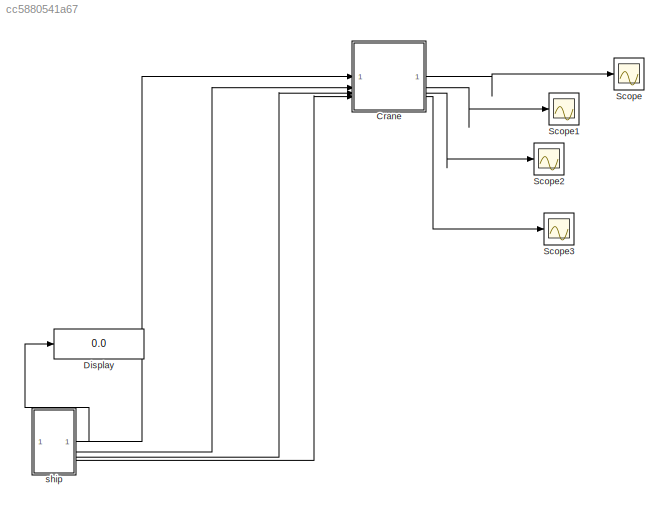
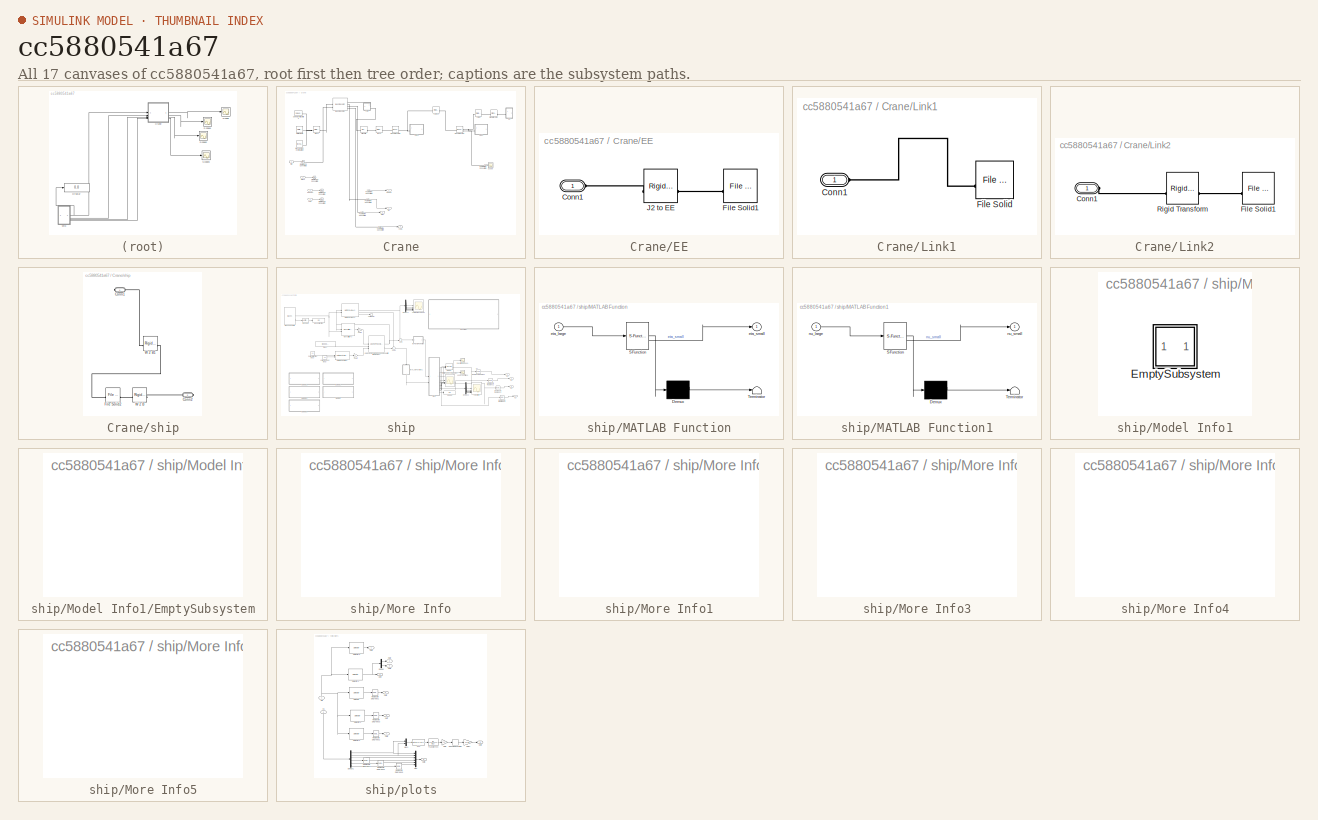
[diagram: thumbnail index - all 17 canvases of the model, root first then tree order]
MODEL slx_cc5880541a67
KIND model
CONFIG AbsTol = auto
CONFIG EnableMultiTasking = off
CONFIG FixedStep = auto
CONFIG MaxStep = auto
CONFIG MinStep = auto
CONFIG RelTol = 1e-3
CONFIG SampleTimeConstraint = Unconstrained
CONFIG SolverName = ode45
CONFIG StartTime = 0.0
CONFIG StopTime = 20
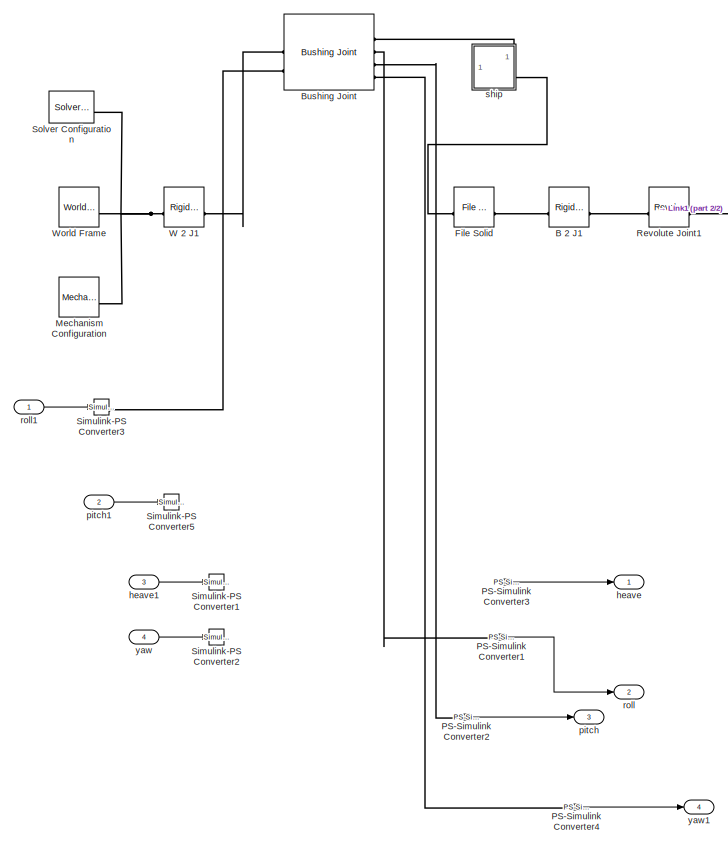
[diagram: Crane - part 1/2, left side, full height]
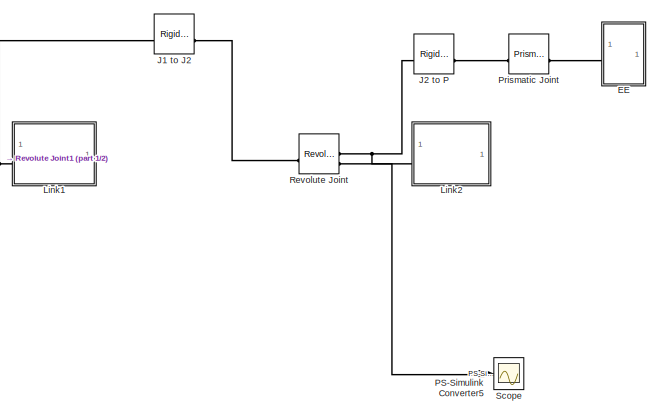
[diagram: Crane - part 2/2, top right region]
BLOCK [SubSystem] Crane
BLOCK [Reference] Crane/B 2 J1  REF=sm_lib/Frames and
Transforms/Rigid
Transform
  SourceBlock = sm_lib/Frames and\nTransforms/Rigid\nTransform
  SourceType = Rigid\nTransform
BLOCK [Reference] Crane/Bushing Joint  REF=sm_lib/Joints/Bushing Joint
  SourceBlock = sm_lib/Joints/Bushing Joint
  SourceType = Bushing Joint
BLOCK [SubSystem] Crane/EE
BLOCK [PMIOPort] Crane/EE/Conn1
  Side = Left
BLOCK [Reference] Crane/EE/File Solid1  REF=sm_lib/Body Elements/File Solid
  SourceBlock = sm_lib/Body Elements/File Solid
  SourceType = File Solid
BLOCK [Reference] Crane/EE/J2 to EE  REF=sm_lib/Frames and
Transforms/Rigid
Transform
  SourceBlock = sm_lib/Frames and\nTransforms/Rigid\nTransform
  SourceType = Rigid\nTransform
BLOCK [Reference] Crane/File Solid  REF=sm_lib/Body Elements/File Solid
  NameLocation = top
  SourceBlock = sm_lib/Body Elements/File Solid
  SourceType = File Solid
BLOCK [Reference] Crane/J1 to J2  REF=sm_lib/Frames and
Transforms/Rigid
Transform
  SourceBlock = sm_lib/Frames and\nTransforms/Rigid\nTransform
  SourceType = Rigid\nTransform
BLOCK [Reference] Crane/J2 to P  REF=sm_lib/Frames and
Transforms/Rigid
Transform
  SourceBlock = sm_lib/Frames and\nTransforms/Rigid\nTransform
  SourceType = Rigid\nTransform
BLOCK [SubSystem] Crane/Link1
BLOCK [PMIOPort] Crane/Link1/Conn1
  Side = Left
BLOCK [Reference] Crane/Link1/File Solid  REF=sm_lib/Body Elements/File Solid
  SourceBlock = sm_lib/Body Elements/File Solid
  SourceType = File Solid
BLOCK [SubSystem] Crane/Link2
BLOCK [PMIOPort] Crane/Link2/Conn1
  Side = Left
BLOCK [Reference] Crane/Link2/File Solid1  REF=sm_lib/Body Elements/File Solid
  SourceBlock = sm_lib/Body Elements/File Solid
  SourceType = File Solid
BLOCK [Reference] Crane/Link2/Rigid Transform  REF=sm_lib/Frames and
Transforms/Rigid
Transform
  SourceBlock = sm_lib/Frames and\nTransforms/Rigid\nTransform
  SourceType = Rigid\nTransform
BLOCK [Reference] Crane/Mechanism Configuration  REF=sm_lib/Utilities/Mechanism
Configuration
  SourceBlock = sm_lib/Utilities/Mechanism\nConfiguration
  SourceType = Mechanism\nConfiguration
BLOCK [Reference] Crane/PS-Simulink Converter1  REF=nesl_utility/PS-Simulink
Converter
  SourceBlock = nesl_utility/PS-Simulink\nConverter
  SourceType = PS-Simulink\nConverter
BLOCK [Reference] Crane/PS-Simulink Converter2  REF=nesl_utility/PS-Simulink
Converter
  SourceBlock = nesl_utility/PS-Simulink\nConverter
  SourceType = PS-Simulink\nConverter
BLOCK [Reference] Crane/PS-Simulink Converter3  REF=nesl_utility/PS-Simulink
Converter
  SourceBlock = nesl_utility/PS-Simulink\nConverter
  SourceType = PS-Simulink\nConverter
BLOCK [Reference] Crane/PS-Simulink Converter4  REF=nesl_utility/PS-Simulink
Converter
  SourceBlock = nesl_utility/PS-Simulink\nConverter
  SourceType = PS-Simulink\nConverter
BLOCK [Reference] Crane/PS-Simulink Converter5  REF=nesl_utility/PS-Simulink
Converter
  SourceBlock = nesl_utility/PS-Simulink\nConverter
  SourceType = PS-Simulink\nConverter
BLOCK [Reference] Crane/Prismatic Joint  REF=sm_lib/Joints/Prismatic
Joint
  SourceBlock = sm_lib/Joints/Prismatic\nJoint
  SourceType = Prismatic\nJoint
BLOCK [Reference] Crane/Revolute Joint  REF=sm_lib/Joints/Revolute Joint
  SourceBlock = sm_lib/Joints/Revolute Joint
  SourceType = Revolute Joint
BLOCK [Reference] Crane/Revolute Joint1  REF=sm_lib/Joints/Revolute Joint
  SourceBlock = sm_lib/Joints/Revolute Joint
  SourceType = Revolute Joint
BLOCK [Scope] Crane/Scope
  Floating = off
  NumInputPorts = 1
  ScopeSpecificationString = Simulink.scopes.TimeScopeBlockCfg('CurrentConfiguration', extmgr.ConfigurationSet(extmgr.Configuration('Core','General UI',true),extmgr.Configuration('Core','Source UI',true),extmgr.Configuration('Sources','WiredSimulink',true,'DataLoggingVariableName','ScopeData5'),extmgr.Configuration('Visuals','Time Domain',true,'SerializedDisplays',{struct('MinYLimReal','-0.99715','MaxYLimReal','0.99166','YLab...<+1530ch>
BLOCK [Reference] Crane/Simulink-PS Converter1  REF=nesl_utility/Simulink-PS
Converter
  SourceBlock = nesl_utility/Simulink-PS\nConverter
  SourceType = Simulink-PS\nConverter
BLOCK [Reference] Crane/Simulink-PS Converter2  REF=nesl_utility/Simulink-PS
Converter
  SourceBlock = nesl_utility/Simulink-PS\nConverter
  SourceType = Simulink-PS\nConverter
BLOCK [Reference] Crane/Simulink-PS Converter3  REF=nesl_utility/Simulink-PS
Converter
  SourceBlock = nesl_utility/Simulink-PS\nConverter
  SourceType = Simulink-PS\nConverter
BLOCK [Reference] Crane/Simulink-PS Converter5  REF=nesl_utility/Simulink-PS
Converter
  SourceBlock = nesl_utility/Simulink-PS\nConverter
  SourceType = Simulink-PS\nConverter
BLOCK [Reference] Crane/Solver Configuration  REF=nesl_utility/Solver
Configuration
  SourceBlock = nesl_utility/Solver\nConfiguration
  SourceType = Solver\nConfiguration
BLOCK [Reference] Crane/W 2 J1  REF=sm_lib/Frames and
Transforms/Rigid
Transform
  SourceBlock = sm_lib/Frames and\nTransforms/Rigid\nTransform
  SourceType = Rigid\nTransform
BLOCK [Reference] Crane/World Frame  REF=sm_lib/Frames and
Transforms/World Frame
  SourceBlock = sm_lib/Frames and\nTransforms/World Frame
  SourceType = World Frame
BLOCK [Outport] Crane/heave
BLOCK [Inport] Crane/heave1
  Port = 3
BLOCK [Outport] Crane/pitch
  Port = 3
BLOCK [Inport] Crane/pitch1
  Port = 2
BLOCK [Outport] Crane/roll
  Port = 2
BLOCK [Inport] Crane/roll1
BLOCK [SubSystem] Crane/ship
BLOCK [PMIOPort] Crane/ship/Conn1
  Side = Right
BLOCK [PMIOPort] Crane/ship/Conn2
  Port = 2
  Side = Right
BLOCK [Reference] Crane/ship/File Solid2  REF=sm_lib/Body Elements/File Solid
  SourceBlock = sm_lib/Body Elements/File Solid
  SourceType = File Solid
BLOCK [Reference] Crane/ship/W 2 B  REF=sm_lib/Frames and
Transforms/Rigid
Transform
  SourceBlock = sm_lib/Frames and\nTransforms/Rigid\nTransform
  SourceType = Rigid\nTransform
BLOCK [Reference] Crane/ship/W 2 B1  REF=sm_lib/Frames and
Transforms/Rigid
Transform
  SourceBlock = sm_lib/Frames and\nTransforms/Rigid\nTransform
  SourceType = Rigid\nTransform
BLOCK [Inport] Crane/yaw
  Port = 4
BLOCK [Outport] Crane/yaw1
  Port = 4
BLOCK [Display] Display
  Decimation = 1
BLOCK [Scope] Scope
  Floating = off
  NumInputPorts = 1
  ScopeSpecificationString = Simulink.scopes.TimeScopeBlockCfg('CurrentConfiguration', extmgr.ConfigurationSet(extmgr.Configuration('Core','General UI',true),extmgr.Configuration('Core','Source UI',true),extmgr.Configuration('Sources','WiredSimulink',true,'DataLoggingVariableName','ScopeData1'),extmgr.Configuration('Visuals','Time Domain',true,'SerializedDisplays',{struct('MinYLimReal','-0.00067','MaxYLimReal','0.00081','YLab...<+1551ch>
BLOCK [Scope] Scope1
  Floating = off
  NumInputPorts = 1
  ScopeSpecificationString = Simulink.scopes.TimeScopeBlockCfg('CurrentConfiguration', extmgr.ConfigurationSet(extmgr.Configuration('Core','General UI',true),extmgr.Configuration('Core','Source UI',true),extmgr.Configuration('Sources','WiredSimulink',true,'DataLoggingVariableName','ScopeData2'),extmgr.Configuration('Visuals','Time Domain',true,'SerializedDisplays',{struct('MinYLimReal','-0.02706','MaxYLimReal','0.02161','YLab...<+1551ch>
BLOCK [Scope] Scope2
  Floating = off
  NumInputPorts = 1
  ScopeSpecificationString = Simulink.scopes.TimeScopeBlockCfg('CurrentConfiguration', extmgr.ConfigurationSet(extmgr.Configuration('Core','General UI',true),extmgr.Configuration('Core','Source UI',true),extmgr.Configuration('Sources','WiredSimulink',true,'DataLoggingVariableName','ScopeData3'),extmgr.Configuration('Visuals','Time Domain',true,'SerializedDisplays',{struct('MinYLimReal','-2.21183','MaxYLimReal','0.91284','YLab...<+1564ch>
BLOCK [Scope] Scope3
  Floating = off
  NumInputPorts = 1
  ScopeSpecificationString = Simulink.scopes.TimeScopeBlockCfg('CurrentConfiguration', extmgr.ConfigurationSet(extmgr.Configuration('Core','General UI',true),extmgr.Configuration('Core','Source UI',true),extmgr.Configuration('Sources','WiredSimulink',true,'DataLoggingVariableName','ScopeData4'),extmgr.Configuration('Visuals','Time Domain',true,'SerializedDisplays',{struct('MinYLimReal','-0.0833','MaxYLimReal','0.08144','YLabe...<+1547ch>
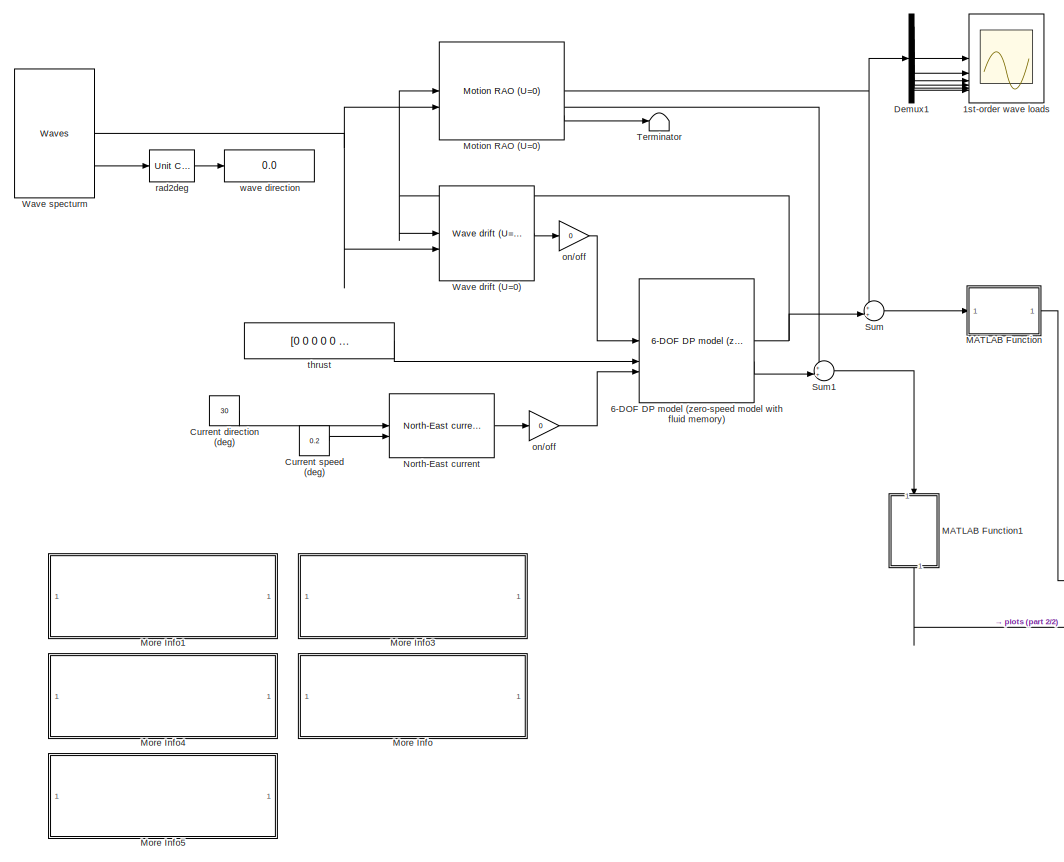
[diagram: ship - part 1/2, left side, full height]
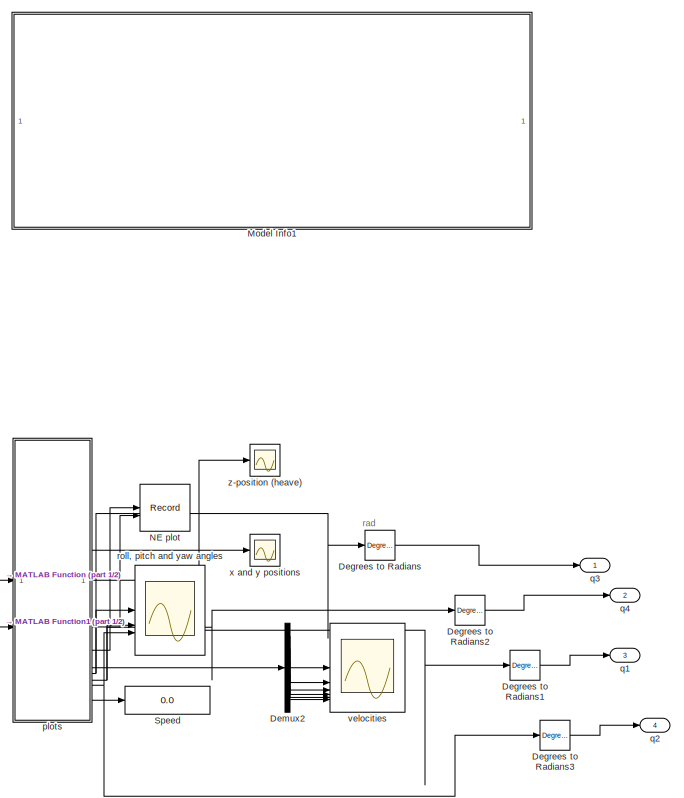
[diagram: ship - part 2/2, right side, full height]
BLOCK [SubSystem] ship
BLOCK [Scope] ship/1st-order wave loads 
  Floating = off
  NumInputPorts = 6
  ScopeSpecificationString = Simulink.scopes.TimeScopeBlockCfg('CurrentConfiguration', extmgr.ConfigurationSet(extmgr.Configuration('Core','General UI',true),extmgr.Configuration('Core','Source UI',true),extmgr.Configuration('Sources','WiredSimulink',true,'DataLoggingSaveFormat','StructureWithTime','DataLoggingLimitDataPoints',true,'DataLoggingDecimation','1','DataLoggingDecimateData',true,'DataLoggingVariableName','ScopeData...<+5699ch>
BLOCK [Reference] ship/6-DOF DP model (zero-speed model with fluid memory)   REF=mssSimulink/Hydrodynamics/6-DOF DP model
 (zero-speed model with fluid memory)
  SourceBlock = mssSimulink/Hydrodynamics/6-DOF DP model\n (zero-speed model with fluid memory)
  SourceType = 6 DOF zero speed model
BLOCK [Constant] ship/Current direction (deg)
  Value = 30
BLOCK [Constant] ship/Current speed (deg)
  Value = 0.2
BLOCK [Reference] ship/Degrees to Radians  REF=simulink_extras/Transformations/Degrees to
Radians
  SourceBlock = simulink_extras/Transformations/Degrees to\nRadians
  SourceType = DegreesToRadians
BLOCK [Reference] ship/Degrees to Radians1  REF=simulink_extras/Transformations/Degrees to
Radians
  SourceBlock = simulink_extras/Transformations/Degrees to\nRadians
  SourceType = DegreesToRadians
BLOCK [Reference] ship/Degrees to Radians2  REF=simulink_extras/Transformations/Degrees to
Radians
  SourceBlock = simulink_extras/Transformations/Degrees to\nRadians
  SourceType = DegreesToRadians
BLOCK [Reference] ship/Degrees to Radians3  REF=simulink_extras/Transformations/Degrees to
Radians
  SourceBlock = simulink_extras/Transformations/Degrees to\nRadians
  SourceType = DegreesToRadians
BLOCK [Demux] ship/Demux1
  DisplayOption = none
  Outputs = 6
BLOCK [Demux] ship/Demux2
  DisplayOption = none
  Outputs = 6
BLOCK [SubSystem] ship/MATLAB Function
  ErrorFcn = Stateflow.Translate.translate
  PermitHierarchicalResolution = ExplicitOnly
  SFBlockType = MATLAB Function
  TreatAsAtomicUnit = on
BLOCK [Demux] ship/MATLAB Function/ Demux 
  Outputs = 1
BLOCK [S-Function] ship/MATLAB Function/ SFunction 
  EnableBusSupport = on
  FunctionName = sf_sfun
  PortCounts = [1 2]
  SFcnIsStateOwnerBlock = off
  SFunctionDeploymentMode = off
  Tag = Stateflow S-Function 2
BLOCK [Terminator] ship/MATLAB Function/ Terminator 
BLOCK [Inport] ship/MATLAB Function/eta_large
BLOCK [Outport] ship/MATLAB Function/eta_small
BLOCK [SubSystem] ship/MATLAB Function1
  ErrorFcn = Stateflow.Translate.translate
  NameLocation = left
  PermitHierarchicalResolution = ExplicitOnly
  SFBlockType = MATLAB Function
  TreatAsAtomicUnit = on
BLOCK [Demux] ship/MATLAB Function1/ Demux 
  Outputs = 1
BLOCK [S-Function] ship/MATLAB Function1/ SFunction 
  EnableBusSupport = on
  FunctionName = sf_sfun
  PortCounts = [1 2]
  SFcnIsStateOwnerBlock = off
  SFunctionDeploymentMode = off
  Tag = Stateflow S-Function 1
BLOCK [Terminator] ship/MATLAB Function1/ Terminator 
BLOCK [Inport] ship/MATLAB Function1/nu_large
BLOCK [Outport] ship/MATLAB Function1/nu_small
BLOCK [SubSystem] ship/Model Info1
  CopyFcn = slcm CopyBlock;
  DeleteFcn = slcm Cancel;
  InitFcn = slcm('UpdateAllCMBlocksInThisModelInit')
  LoadFcn = slcm LoadBlock;
  NameChangeFcn = slcm Rename;
  OpenFcn = slcm
  PostSaveFcn = slcm('UpdateAllCMBlocksInThisModel')
BLOCK [SubSystem] ship/Model Info1/EmptySubsystem
BLOCK [SubSystem] ship/More Info
  OpenFcn = load('supply'),load('supplyABC');disp('MSS supply vessel data set (L = 82.80 m) loaded')
BLOCK [SubSystem] ship/More Info1
  OpenFcn = load('tanker'),load('tankerABC');disp('MSS tanker data set (L = 246.0 m) loaded')
BLOCK [SubSystem] ship/More Info3
  OpenFcn = load('s175'),load('s175ABC');disp('MSS S175 data set (L = 175.0 m) loaded')
BLOCK [SubSystem] ship/More Info4
  OpenFcn = load('fpso'),load('fpsoABC');disp('MSS FPSO data set (L = 200.0 m) loaded')
BLOCK [SubSystem] ship/More Info5
  OpenFcn = load('semisub'),load('semisubABC');disp('MSS semi-sub data set (L = 115.0 m) loaded')
BLOCK [Reference] ship/Motion RAO (U=0)   REF=mssSimulink/Hydrodynamics/Motion RAO (U=0)
  SourceBlock = mssSimulink/Hydrodynamics/Motion RAO (U=0)
  SourceType = Motion RAO
BLOCK [Record] ship/NE plot
  CompatibilityTag = XY
  FileSettingsInternal = {"entries":[{"content":{"excelSettings":{"content":{},"type":"Streamout.ExcelSettings"}},"type":"Streamout.FileSettingStorage","uuid":""}],"packageUris":["http:\/\/schema.mathworks.com\/mf0\/streamout_blocks\/R2020a"],"version":"1.0"}
  Layout = [1 1]
  SignalsInternal = {"entries":[{"content":{"signals":[{"content":{"blockPath":[],"dimensions":[1,1],"domain":"","lineColor":"#a2142f","plots":[ 1 ],"port":1,"sid":[""],"signalID":1,"signalName":"plots:3"},"type":"RecordBlkView.Signal","uuid":""},{"content":{"blockPath":[],"dimensions":[1,1],"domain":"","lineColor":"#139fff","plots":[ 1 ],"port":2,"sid":[""],"signalID":2,"signalName":"plots:2"},"type":"RecordBlkView....<+164ch>
  VisualizationBindings = {"xyplotplugin":{"info":[{"series":[{"bindingParametersList":[{"parameter":"X-Axis","signalID":1,"signalName":"plots:3"},{"parameter":"Y-Axis","signalID":2,"signalName":"plots:2"}],"seriesID":0}],"subplotID":1}]}}
  st = -1
BLOCK [Reference] ship/North-East current   REF=mssSimulink/Environment/Current/North-East current
  SourceBlock = mssSimulink/Environment/Current/North-East current
  SourceType = SubSystem
BLOCK [Display] ship/Speed
  Decimation = 1
BLOCK [Sum] ship/Sum
  Inputs = ++|
BLOCK [Sum] ship/Sum1
  Inputs = ++|
BLOCK [Terminator] ship/Terminator
BLOCK [Reference] ship/Wave drift (U=0)   REF=mssSimulink/Hydrodynamics/Wave drift (U=0)
  SourceBlock = mssSimulink/Hydrodynamics/Wave drift (U=0)
  SourceType = SubSystem
BLOCK [Reference] ship/Wave specturm  REF=mssSimulink/Environment/Waves/Waves
  SourceBlock = mssSimulink/Environment/Waves/Waves
  SourceType = Waves
BLOCK [Gain] ship/on//off
  Gain = 0
BLOCK [Gain] ship/on//off 
  Gain = 0
BLOCK [SubSystem] ship/plots
BLOCK [Demux] ship/plots/Demux
  DisplayOption = none
  Outputs = 2
BLOCK [Demux] ship/plots/Demux1
  DisplayOption = none
  Outputs = 6
BLOCK [Fcn] ship/plots/Fcn
  Expr = sqrt(u(1)*u(1)+u(2)*u(2))
BLOCK [Gain] ship/plots/Gain
  Gain = 10
BLOCK [Gain] ship/plots/Gain1
  Gain = 1/10
BLOCK [Mux] ship/plots/Mux
  DisplayOption = bar
  Inputs = 6
BLOCK [Mux] ship/plots/Mux1
  DisplayOption = bar
  Inputs = 2
BLOCK [Outport] ship/plots/Out1
BLOCK [Outport] ship/plots/Out2
  Port = 2
BLOCK [Outport] ship/plots/Out3
  Port = 3
BLOCK [Outport] ship/plots/Out4
  Port = 4
BLOCK [Outport] ship/plots/Out5
  Port = 5
BLOCK [Outport] ship/plots/Out6
  Port = 7
BLOCK [Outport] ship/plots/Out7
  Port = 6
BLOCK [Outport] ship/plots/Out8
  Port = 8
BLOCK [Outport] ship/plots/Out9
  Port = 9
BLOCK [Reference] ship/plots/Radians to Degrees1  REF=simulink_extras/Transformations/Radians
to Degrees
  SourceBlock = simulink_extras/Transformations/Radians\nto Degrees
  SourceType = RadiansToDegrees
BLOCK [Reference] ship/plots/Radians to Degrees2  REF=simulink_extras/Transformations/Radians
to Degrees
  SourceBlock = simulink_extras/Transformations/Radians\nto Degrees
  SourceType = RadiansToDegrees
BLOCK [Reference] ship/plots/Radians to Degrees3  REF=simulink_extras/Transformations/Radians
to Degrees
  SourceBlock = simulink_extras/Transformations/Radians\nto Degrees
  SourceType = RadiansToDegrees
BLOCK [Reference] ship/plots/Radians to Degrees4  REF=simulink_extras/Transformations/Radians
to Degrees
  SourceBlock = simulink_extras/Transformations/Radians\nto Degrees
  SourceType = RadiansToDegrees
BLOCK [Reference] ship/plots/Radians to Degrees5  REF=simulink_extras/Transformations/Radians
to Degrees
  SourceBlock = simulink_extras/Transformations/Radians\nto Degrees
  SourceType = RadiansToDegrees
BLOCK [Reference] ship/plots/Radians to Degrees6  REF=simulink_extras/Transformations/Radians
to Degrees
  SourceBlock = simulink_extras/Transformations/Radians\nto Degrees
  SourceType = RadiansToDegrees
BLOCK [Rounding] ship/plots/Rounding Function
BLOCK [Selector] ship/plots/Selector
  IndexOptions = Index vector (dialog)
  Indices = [4 ]
  InputPortWidth = 6
  OutputSizes = 1
BLOCK [Selector] ship/plots/Selector1
  IndexOptions = Index vector (dialog)
  Indices = [1 2]
  InputPortWidth = 6
  OutputSizes = 1
BLOCK [Selector] ship/plots/Selector2
  IndexOptions = Index vector (dialog)
  Indices = [6]
  InputPortWidth = 6
  OutputSizes = 1
BLOCK [Selector] ship/plots/Selector3
  IndexOptions = Index vector (dialog)
  Indices = [3]
  InputPortWidth = 6
  OutputSizes = 1
BLOCK [Selector] ship/plots/Selector4
  IndexOptions = Index vector (dialog)
  Indices = [5]
  InputPortWidth = 6
  OutputSizes = 1
BLOCK [TransferFcn] ship/plots/Transfer Fcn
  Denominator = [5 1]
BLOCK [Inport] ship/plots/eta
  NameLocation = right
BLOCK [Inport] ship/plots/nu
  NameLocation = left
  Port = 2
BLOCK [Outport] ship/q1
  Port = 3
BLOCK [Outport] ship/q2
  Port = 4
BLOCK [Outport] ship/q3
BLOCK [Outport] ship/q4
  Port = 2
BLOCK [Reference] ship/rad2deg  REF=mssSimulink/Utilities/Math Operations/Unit Conversion
  SourceBlock = mssSimulink/Utilities/Math Operations/Unit Conversion
  SourceType = Unit Conversion
BLOCK [Scope] ship/roll, pitch and yaw angles
  Floating = off
  NumInputPorts = 3
  ScopeSpecificationString = Simulink.scopes.TimeScopeBlockCfg('CurrentConfiguration', extmgr.ConfigurationSet(extmgr.Configuration('Core','General UI',true),extmgr.Configuration('Core','Source UI',true),extmgr.Configuration('Sources','WiredSimulink',true,'DataLoggingVariableName','ScopeData3','DataLoggingSaveFormat','StructureWithTime','DataLoggingLimitDataPoints',true,'DataLoggingDecimation','1','DataLoggingDecimateData',tr...<+3349ch>
BLOCK [Constant] ship/thrust
  Value = [0 0 0 0 0 0]'
BLOCK [Scope] ship/velocities
  Floating = off
  NumInputPorts = 6
  ScopeSpecificationString = Simulink.scopes.TimeScopeBlockCfg('CurrentConfiguration', extmgr.ConfigurationSet(extmgr.Configuration('Core','General UI',true),extmgr.Configuration('Core','Source UI',true),extmgr.Configuration('Sources','WiredSimulink',true,'DataLoggingVariableName','ScopeData4','DataLoggingSaveFormat','StructureWithTime','DataLoggingLimitDataPoints',true,'DataLoggingDecimation','1','DataLoggingDecimateData',tr...<+5707ch>
BLOCK [Display] ship/wave direction
  Decimation = 1
BLOCK [Scope] ship/x and y positions
  Floating = off
  NumInputPorts = 1
  ScopeSpecificationString = Simulink.scopes.TimeScopeBlockCfg('CurrentConfiguration', extmgr.ConfigurationSet(extmgr.Configuration('Core','General UI',true),extmgr.Configuration('Core','Source UI',true),extmgr.Configuration('Sources','WiredSimulink',true,'DataLoggingVariableName','ScopeData5','DataLoggingSaveFormat','StructureWithTime','DataLoggingLimitDataPoints',true,'DataLoggingDecimation','1','DataLoggingDecimateData',tr...<+1852ch>
BLOCK [Scope] ship/z-position (heave)
  Floating = off
  NumInputPorts = 1
  ScopeSpecificationString = Simulink.scopes.TimeScopeBlockCfg('CurrentConfiguration', extmgr.ConfigurationSet(extmgr.Configuration('Core','General UI',true),extmgr.Configuration('Core','Source UI',true),extmgr.Configuration('Sources','WiredSimulink',true,'DataLoggingVariableName','ScopeData6','DataLoggingSaveFormat','StructureWithTime','DataLoggingLimitDataPoints',true,'DataLoggingDecimation','1','DataLoggingDecimateData',tr...<+1841ch>
ANNOTATION ship: rad
LINE Crane/PS-Simulink Converter1:1 -> Crane/roll:1
LINE Crane/PS-Simulink Converter2:1 -> Crane/pitch:1
LINE Crane/PS-Simulink Converter3:1 -> Crane/heave:1
LINE Crane/PS-Simulink Converter4:1 -> Crane/yaw1:1
LINE Crane/PS-Simulink Converter5:1 -> Crane/Scope:1
LINE Crane/heave1:1 -> Crane/Simulink-PS Converter1:1
LINE Crane/pitch1:1 -> Crane/Simulink-PS Converter5:1
LINE Crane/roll1:1 -> Crane/Simulink-PS Converter3:1
LINE Crane/yaw:1 -> Crane/Simulink-PS Converter2:1
LINE Crane:1 -> Scope:1
LINE Crane:2 -> Scope1:1
LINE Crane:3 -> Scope2:1
LINE Crane:4 -> Scope3:1
NET ship/6-DOF DP model (zero-speed model with fluid memory) :1 -> ship/Motion RAO (U=0) :1, ship/Sum:2, ship/Wave drift (U=0) :1
LINE ship/6-DOF DP model (zero-speed model with fluid memory) :2 -> ship/Sum1:2
LINE ship/Current direction (deg):1 -> ship/North-East current :1
LINE ship/Current speed (deg):1 -> ship/North-East current :2
LINE ship/Degrees to Radians1:1 -> ship/q1:1
LINE ship/Degrees to Radians2:1 -> ship/q4:1
LINE ship/Degrees to Radians3:1 -> ship/q2:1
LINE ship/Degrees to Radians:1 -> ship/q3:1
LINE ship/Demux1:1 -> ship/1st-order wave loads :1
LINE ship/Demux1:2 -> ship/1st-order wave loads :2
LINE ship/Demux1:3 -> ship/1st-order wave loads :3
LINE ship/Demux1:4 -> ship/1st-order wave loads :4
LINE ship/Demux1:5 -> ship/1st-order wave loads :5
LINE ship/Demux1:6 -> ship/1st-order wave loads :6
LINE ship/Demux2:1 -> ship/velocities:1
LINE ship/Demux2:2 -> ship/velocities:2
LINE ship/Demux2:3 -> ship/velocities:3
LINE ship/Demux2:4 -> ship/velocities:4
LINE ship/Demux2:5 -> ship/velocities:5
LINE ship/Demux2:6 -> ship/velocities:6
LINE ship/MATLAB Function1:1 -> ship/plots:2
LINE ship/MATLAB Function:1 -> ship/plots:1
NET ship/Motion RAO (U=0) :1 -> ship/Demux1:1, ship/Sum:1
LINE ship/Motion RAO (U=0) :2 -> ship/Sum1:1
LINE ship/Motion RAO (U=0) :3 -> ship/Terminator:1
LINE ship/North-East current :1 -> ship/on//off :1
LINE ship/Sum1:1 -> ship/MATLAB Function1:1
LINE ship/Sum:1 -> ship/MATLAB Function:1
LINE ship/Wave drift (U=0) :1 -> ship/on//off:1
NET ship/Wave specturm:1 -> ship/Motion RAO (U=0) :2, ship/Wave drift (U=0) :2
LINE ship/Wave specturm:2 -> ship/rad2deg:1
LINE ship/on//off :1 -> ship/6-DOF DP model (zero-speed model with fluid memory) :3
LINE ship/on//off:1 -> ship/6-DOF DP model (zero-speed model with fluid memory) :1
NET ship/plots/Demux1:1 -> ship/plots/Mux1:1, ship/plots/Mux:1
NET ship/plots/Demux1:2 -> ship/plots/Mux1:2, ship/plots/Mux:2
LINE ship/plots/Demux1:3 -> ship/plots/Mux:3
LINE ship/plots/Demux1:4 -> ship/plots/Radians to Degrees4:1
LINE ship/plots/Demux1:5 -> ship/plots/Radians to Degrees5:1
LINE ship/plots/Demux1:6 -> ship/plots/Radians to Degrees6:1
LINE ship/plots/Demux:1 -> ship/plots/Out2:1
LINE ship/plots/Demux:2 -> ship/plots/Out3:1
LINE ship/plots/Fcn:1 -> ship/plots/Transfer Fcn:1
LINE ship/plots/Gain1:1 -> ship/plots/Out9:1
LINE ship/plots/Gain:1 -> ship/plots/Rounding Function:1
LINE ship/plots/Mux1:1 -> ship/plots/Fcn:1
LINE ship/plots/Mux:1 -> ship/plots/Out8:1
LINE ship/plots/Radians to Degrees1:1 -> ship/plots/Out5:1
LINE ship/plots/Radians to Degrees2:1 -> ship/plots/Out6:1
LINE ship/plots/Radians to Degrees3:1 -> ship/plots/Out7:1
LINE ship/plots/Radians to Degrees4:1 -> ship/plots/Mux:4
LINE ship/plots/Radians to Degrees5:1 -> ship/plots/Mux:5
LINE ship/plots/Radians to Degrees6:1 -> ship/plots/Mux:6
LINE ship/plots/Rounding Function:1 -> ship/plots/Gain1:1
NET ship/plots/Selector1:1 -> ship/plots/Demux:1, ship/plots/Out4:1
LINE ship/plots/Selector2:1 -> ship/plots/Radians to Degrees2:1
LINE ship/plots/Selector3:1 -> ship/plots/Out1:1
LINE ship/plots/Selector4:1 -> ship/plots/Radians to Degrees3:1
LINE ship/plots/Selector:1 -> ship/plots/Radians to Degrees1:1
LINE ship/plots/Transfer Fcn:1 -> ship/plots/Gain:1
NET ship/plots/eta:1 -> ship/plots/Selector1:1, ship/plots/Selector2:1, ship/plots/Selector3:1, ship/plots/Selector4:1, ship/plots/Selector:1
LINE ship/plots/nu:1 -> ship/plots/Demux1:1
NET ship/plots:1 -> ship/Degrees to Radians1:1, ship/z-position (heave):1
LINE ship/plots:2 -> ship/NE plot:2
LINE ship/plots:3 -> ship/NE plot:1
LINE ship/plots:4 -> ship/x and y positions:1
NET ship/plots:5 -> ship/Degrees to Radians:1, ship/roll, pitch and yaw angles:1
NET ship/plots:6 -> ship/Degrees to Radians2:1, ship/roll, pitch and yaw angles:2
NET ship/plots:7 -> ship/Degrees to Radians3:1, ship/roll, pitch and yaw angles:3
LINE ship/plots:8 -> ship/Demux2:1
LINE ship/plots:9 -> ship/Speed:1
LINE ship/rad2deg:1 -> ship/wave direction:1
LINE ship/thrust:1 -> ship/6-DOF DP model (zero-speed model with fluid memory) :2
NET ship:1 -> Crane:1, Display:1
LINE ship:2 -> Crane:2
LINE ship:3 -> Crane:3
LINE ship:4 -> Crane:4
PLINE Crane/B 2 J1:LConn1 -- Crane/File Solid:RConn1
PLINE Crane/B 2 J1:RConn1 -- Crane/Revolute Joint1:LConn1
PLINE Crane/Bushing Joint:LConn1 -- Crane/W 2 J1:RConn1
PLINE Crane/Bushing Joint:LConn2 -- Crane/Simulink-PS Converter3:RConn1
PLINE Crane/Bushing Joint:RConn1 -- Crane/ship:RConn1
PLINE Crane/Bushing Joint:RConn2 -- Crane/PS-Simulink Converter1:LConn1
PLINE Crane/Bushing Joint:RConn3 -- Crane/PS-Simulink Converter2:LConn1
PLINE Crane/Bushing Joint:RConn4 -- Crane/PS-Simulink Converter4:LConn1
PLINE Crane/EE/Conn1:RConn1 -- Crane/EE/J2 to EE:LConn1
PLINE Crane/EE/File Solid1:LConn1 -- Crane/EE/J2 to EE:RConn1
PLINE Crane/EE:LConn1 -- Crane/Prismatic Joint:RConn1
PLINE Crane/File Solid:LConn1 -- Crane/ship:RConn2
PNET net1: Crane/J1 to J2:LConn1 -- Crane/Link1:LConn1 -- Crane/Revolute Joint1:RConn1
PLINE Crane/J1 to J2:RConn1 -- Crane/Revolute Joint:LConn1
PNET net2: Crane/J2 to P:LConn1 -- Crane/Link2:LConn1 -- Crane/Revolute Joint:RConn1
PLINE Crane/J2 to P:RConn1 -- Crane/Prismatic Joint:LConn1
PLINE Crane/Link1/Conn1:RConn1 -- Crane/Link1/File Solid:LConn1
PLINE Crane/Link2/Conn1:RConn1 -- Crane/Link2/Rigid Transform:LConn1
PLINE Crane/Link2/File Solid1:LConn1 -- Crane/Link2/Rigid Transform:RConn1
PNET net3: Crane/Mechanism Configuration:RConn1 -- Crane/Solver Configuration:RConn1 -- Crane/W 2 J1:LConn1 -- Crane/World Frame:RConn1
PLINE Crane/PS-Simulink Converter5:LConn1 -- Crane/Revolute Joint:RConn2
PLINE Crane/ship/Conn1:RConn1 -- Crane/ship/W 2 B1:LConn1
PLINE Crane/ship/Conn2:RConn1 -- Crane/ship/W 2 B:RConn1
PLINE Crane/ship/File Solid2:LConn1 -- Crane/ship/W 2 B:LConn1
PLINE Crane/ship/File Solid2:RConn1 -- Crane/ship/W 2 B1:RConn1
note: NET lines group one-source signal fan-out (src -> all destinations, sorted); 1:1 wires keep LINE; PNET lines group multi-terminal physical nets as a canonical sorted terminal list (undirected conserving connections); 2-terminal nets keep the pairwise PLINE form
CHART ship/MATLAB Function states=1 transitions=1
  STATE_LABEL 'eML_blk_kernel()'
  STATE_LABEL 'SCRIPT:\nfunction eta_small = fcn(eta_large) %POSITION SCALING\n\nL_small = 14;\nL_large = 82.8;\n\nT_large = diag([1, 1, 1, 1/L_large, 1/L_large, 1/L_large]);\nT_small = diag([1, 1, 1, 1/L_small, 1/L_small, 1/L_small]);\n \n\n%THE FIRST 3 ROWS ARE SCALED, so positions in x y z\neta_small = L_small/L_large * T_small * T_large^-1 * eta_large;\n'
CHART ship/MATLAB Function1 states=1 transitions=1
  STATE_LABEL 'eML_blk_kernel()'
  STATE_LABEL 'SCRIPT:\nfunction nu_small = fcn(nu_large)  %VELOCITY SCALING\n\nL_small = 14;\nL_large = 84;\n\nT_large = diag([1, 1, 1, 1/L_large, 1/L_large, 1/L_large]);\nT_small = diag([1, 1, 1, 1/L_small, 1/L_small, 1/L_small]);\n \n\n\nnu_small =sqrt(L_small/L_large) * T_small * T_large^-1 * nu_large;\n'
CHART  states=0 transitions=0
CHART  states=0 transitions=0
